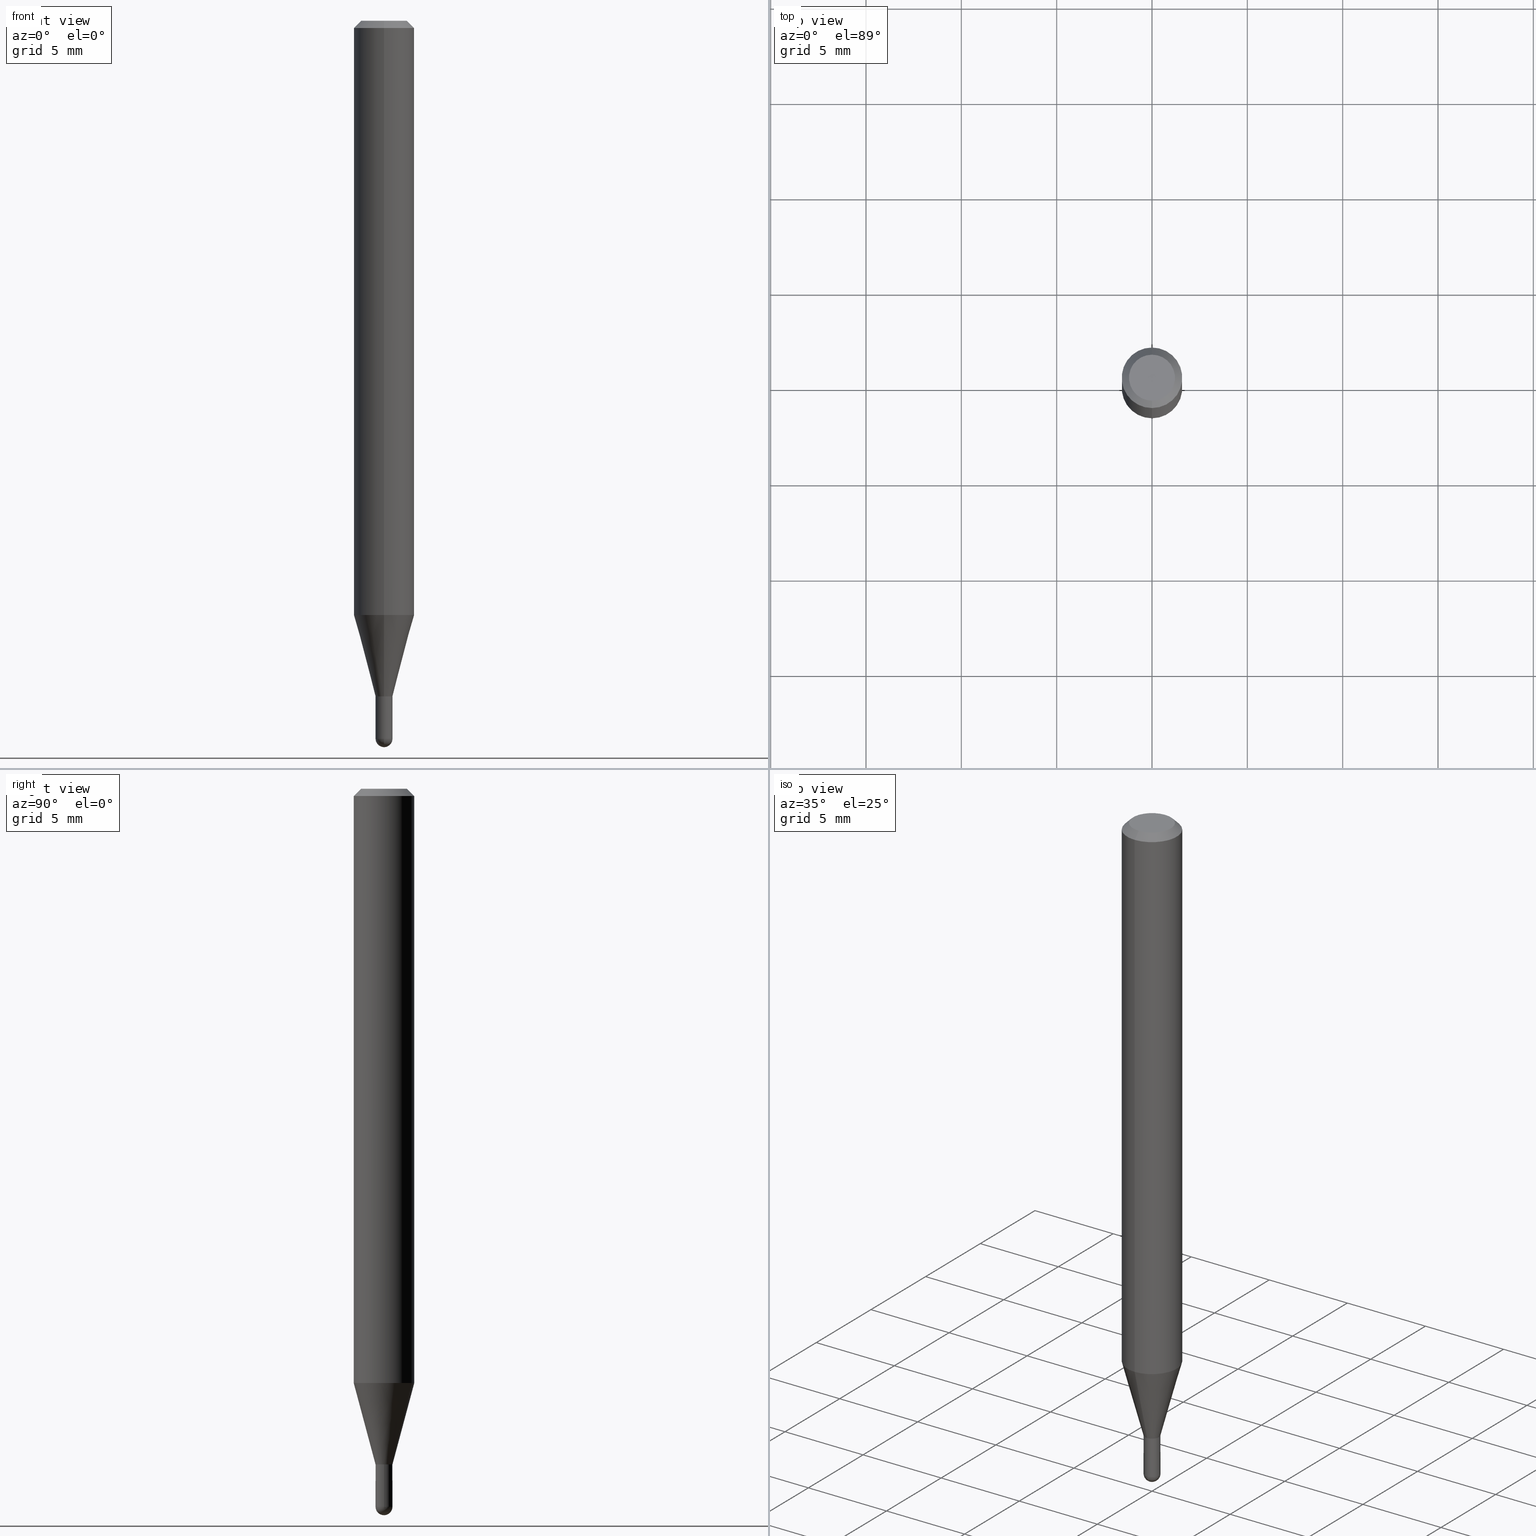
[diagram: canonical four-view strip — front | top / right | iso, engineering-drawing reading convention]
A machine part, canonical four-view strip (front | top / right | iso — engineering-drawing reading convention). The complete STEP part file that produces these views, byte-faithful:
ISO-10303-21;
HEADER;
FILE_DESCRIPTION (( 'STEP AP203' ),
    '1' );
FILE_NAME ('04413.STEP',
    '2024-03-08T19:17:54',
    ( '' ),
    ( '' ),
    'SwSTEP 2.0',
    'SolidWorks 2023',
    '' );
FILE_SCHEMA (( 'CONFIG_CONTROL_DESIGN' ));
ENDSEC;

DATA;
#1 = CARTESIAN_POINT ( 'NONE',  ( -0.01750000000000000167, -4.899023797502559247E-15, -1.395000000000000018 ) ) ;
#2 = VERTEX_POINT ( 'NONE', #423 ) ;
#3 = APPROVAL_PERSON_ORGANIZATION ( #324, #493, #359 ) ;
#4 = APPROVAL_STATUS ( 'not_yet_approved' ) ;
#5 = EDGE_CURVE ( 'NONE', #418, #348, #42, .T. ) ;
#6 = VERTEX_POINT ( 'NONE', #37 ) ;
#7 = COORDINATED_UNIVERSAL_TIME_OFFSET ( 5, 0, .BEHIND. ) ;
#8 = DIRECTION ( 'NONE',  ( 2.438088387897960049E-29, -3.491481338843145188E-15, -1.000000000000000000 ) ) ;
#9 = CARTESIAN_POINT ( 'NONE',  ( 3.840629472727447874E-16, 0.04749999999999999362, -2.313455976474456035E-16 ) ) ;
#10 = EDGE_CURVE ( 'NONE', #112, #468, #506, .T. ) ;
#11 = EDGE_CURVE ( 'NONE', #332, #6, #485, .T. ) ;
#12 = VECTOR ( 'NONE', #499, 39.37007874015748143 ) ;
#13 = LOCAL_TIME ( 14, 17, 54.00000000000000000, #246 ) ;
#14 = COORDINATED_UNIVERSAL_TIME_OFFSET ( 5, 0, .BEHIND. ) ;
#15 = APPLICATION_PROTOCOL_DEFINITION ( 'international standard', 'config_control_design', 1994, #166 ) ;
#16 = CARTESIAN_POINT ( 'NONE',  ( -1.187103655206324139E-16, -0.01700000000000487232, -1.394999999999999796 ) ) ;
#17 = EDGE_CURVE ( 'NONE', #348, #376, #469, .T. ) ;
#18 = DIRECTION ( 'NONE',  ( -6.982962677686265922E-15, -1.000000000000000000, 3.483106191921935554E-15 ) ) ;
#19 = VECTOR ( 'NONE', #367, 39.37007874015748143 ) ;
#20 = AXIS2_PLACEMENT_3D ( 'NONE', #352, #422, #301 ) ;
#21 = LINE ( 'NONE', #370, #97 ) ;
#22 = ORIENTED_EDGE ( 'NONE', *, *, #350, .T. ) ;
#23 = DIRECTION ( 'NONE',  ( -6.982962677686265922E-15, -1.000000000000000000, 3.491476586053657757E-15 ) ) ;
#24 = CC_DESIGN_DATE_AND_TIME_ASSIGNMENT ( #207, #126, ( #89 ) ) ;
#25 = EDGE_LOOP ( 'NONE', ( #509, #222, #336, #303, #353 ) ) ;
#26 = DIRECTION ( 'NONE',  ( -2.445472125040297483E-29, 3.491476586053657757E-15, 1.000000000000000000 ) ) ;
#27 = VERTEX_POINT ( 'NONE', #194 ) ;
#28 = CARTESIAN_POINT ( 'NONE',  ( 4.440892098500625669E-16, 0.06250000000000000000, -2.182172866283536098E-16 ) ) ;
#29 = LOCAL_TIME ( 14, 17, 54.00000000000000000, #202 ) ;
#30 = ORIENTED_EDGE ( 'NONE', *, *, #103, .F. ) ;
#31 = DIRECTION ( 'NONE',  ( -6.982962677686265922E-15, -1.000000000000000000, 0.000000000000000000 ) ) ;
#32 = ORIENTED_EDGE ( 'NONE', *, *, #488, .T. ) ;
#33 = EDGE_CURVE ( 'NONE', #2, #27, #313, .T. ) ;
#34 = FACE_OUTER_BOUND ( 'NONE', #256, .T. ) ;
#35 = CYLINDRICAL_SURFACE ( 'NONE', #397, 0.01750000000000000167 ) ;
#36 = APPLICATION_PROTOCOL_DEFINITION ( 'international standard', 'config_control_design', 1994, #257 ) ;
#37 = CARTESIAN_POINT ( 'NONE',  ( -0.01750000000000000167, -4.899023797502559247E-15, -1.482500000000000373 ) ) ;
#38 = APPROVAL_PERSON_ORGANIZATION ( #361, #333, #366 ) ;
#39 = DIRECTION ( 'NONE',  ( -2.445472125040297483E-29, 3.491476586053657757E-15, 1.000000000000000000 ) ) ;
#40 = VERTEX_POINT ( 'NONE', #465 ) ;
#41 = CARTESIAN_POINT ( 'NONE',  ( 3.411433614431215021E-29, -4.870609837544852369E-15, -1.395000000000000018 ) ) ;
#42 = LINE ( 'NONE', #344, #427 ) ;
#43 = DIRECTION ( 'NONE',  ( -2.445472125040297483E-29, 3.491476586053657757E-15, 1.000000000000000000 ) ) ;
#44 = ORIENTED_EDGE ( 'NONE', *, *, #459, .T. ) ;
#45 = AXIS2_PLACEMENT_3D ( 'NONE', #466, #358, #160 ) ;
#46 = CONICAL_SURFACE ( 'NONE', #486, 0.01700000000000000122, 0.7853981633974739252 ) ;
#47 = DIRECTION ( 'NONE',  ( -1.000000000000000000, 6.982962677686265922E-15, -4.876176775795935793E-29 ) ) ;
#48 = ADVANCED_FACE ( 'NONE', ( #472 ), #35, .T. ) ;
#49 = EDGE_CURVE ( 'NONE', #418, #64, #96, .T. ) ;
#50 = FACE_OUTER_BOUND ( 'NONE', #497, .T. ) ;
#51 = MECHANICAL_CONTEXT ( 'NONE', #257, 'mechanical' ) ;
#52 = FACE_OUTER_BOUND ( 'NONE', #118, .T. ) ;
#53 = VECTOR ( 'NONE', #66, 39.37007874015748143 ) ;
#54 = CIRCLE ( 'NONE', #463, 0.04749999999999999362 ) ;
#55 = PERSON_AND_ORGANIZATION ( #510, #154 ) ;
#56 = CARTESIAN_POINT ( 'NONE',  ( 3.623910964163401181E-29, -5.178264216733472029E-15, -1.482500000000000151 ) ) ;
#57 = PERSON_AND_ORGANIZATION ( #510, #154 ) ;
#58 = DIRECTION ( 'NONE',  ( -2.445472125040297483E-29, 3.491476586053657757E-15, 1.000000000000000000 ) ) ;
#59 = FACE_OUTER_BOUND ( 'NONE', #217, .T. ) ;
#60 = ORIENTED_EDGE ( 'NONE', *, *, #124, .T. ) ;
#61 = VECTOR ( 'NONE', #435, 39.37007874015748143 ) ;
#62 = AXIS2_PLACEMENT_3D ( 'NONE', #199, #39, #429 ) ;
#63 = DIRECTION ( 'NONE',  ( -2.445472125040297483E-29, 3.491476586053657757E-15, 1.000000000000000000 ) ) ;
#64 = VERTEX_POINT ( 'NONE', #326 ) ;
#65 = FACE_OUTER_BOUND ( 'NONE', #274, .T. ) ;
#66 = DIRECTION ( 'NONE',  ( -4.851104656540964275E-15, -0.7071067811865500152, -0.7071067811865450192 ) ) ;
#67 = ORIENTED_EDGE ( 'NONE', *, *, #448, .T. ) ;
#68 = DIRECTION ( 'NONE',  ( -6.982962677686265922E-15, -1.000000000000000000, 3.491476586053657757E-15 ) ) ;
#69 = AXIS2_PLACEMENT_3D ( 'NONE', #277, #283, #281 ) ;
#70 = EDGE_LOOP ( 'NONE', ( #293, #141, #200, #396 ) ) ;
#71 = ADVANCED_FACE ( 'NONE', ( #135 ), #169, .T. ) ;
#72 = DIRECTION ( 'NONE',  ( -6.982962677686265133E-15, -1.000000000000000000, 0.000000000000000000 ) ) ;
#73 = ORIENTED_EDGE ( 'NONE', *, *, #305, .T. ) ;
#74 = CARTESIAN_POINT ( 'NONE',  ( 0.000000000000000000, 0.000000000000000000, 0.000000000000000000 ) ) ;
#75 = CC_DESIGN_DATE_AND_TIME_ASSIGNMENT ( #363, #250, ( #407 ) ) ;
#76 = CIRCLE ( 'NONE', #212, 0.06250000000000000000 ) ;
#77 = ORIENTED_EDGE ( 'NONE', *, *, #425, .T. ) ;
#78 = ADVANCED_FACE ( 'NONE', ( #479 ), #487, .F. ) ;
#79 = DIRECTION ( 'NONE',  ( -6.982962677686265133E-15, -1.000000000000000000, 0.000000000000000000 ) ) ;
#80 = ORIENTED_EDGE ( 'NONE', *, *, #81, .F. ) ;
#81 = EDGE_CURVE ( 'NONE', #40, #388, #76, .T. ) ;
#82 = DIRECTION ( 'NONE',  ( 2.445472125040297203E-29, -3.491476586053657757E-15, -1.000000000000000000 ) ) ;
#83 = CARTESIAN_POINT ( 'NONE',  ( 0.000000000000000000, 0.000000000000000000, 0.000000000000000000 ) ) ;
#84 = PERSON_AND_ORGANIZATION_ROLE ( 'design_supplier' ) ;
#85 = DIRECTION ( 'NONE',  ( -6.982962677686265922E-15, -1.000000000000000000, 0.000000000000000000 ) ) ;
#86 = AXIS2_PLACEMENT_3D ( 'NONE', #56, #165, #401 ) ;
#87 = AXIS2_PLACEMENT_3D ( 'NONE', #99, #252, #140 ) ;
#88 = AXIS2_PLACEMENT_3D ( 'NONE', #253, #63, #23 ) ;
#89 = PRODUCT_DEFINITION ( 'UNKNOWN', '', #453, #413 ) ;
#90 = APPROVAL_DATE_TIME ( #402, #480 ) ;
#91 = CARTESIAN_POINT ( 'NONE',  ( 0.000000000000000000, 0.000000000000000000, 0.000000000000000000 ) ) ;
#92 = SHAPE_DEFINITION_REPRESENTATION ( #162, #271 ) ;
#93 = DIRECTION ( 'NONE',  ( -2.445468806185136597E-29, 3.491481338843145583E-15, 1.000000000000000000 ) ) ;
#94 = SECURITY_CLASSIFICATION_LEVEL ( 'unclassified' ) ;
#95 = CARTESIAN_POINT ( 'NONE',  ( 3.668208187560462655E-31, -5.237214879080509612E-17, -0.01500000000000006710 ) ) ;
#96 = CIRCLE ( 'NONE', #286, 0.01749999999999965472 ) ;
#97 = VECTOR ( 'NONE', #330, 39.37007874015748143 ) ;
#98 = CARTESIAN_POINT ( 'NONE',  ( 3.668208187560462655E-31, -5.237214879080509612E-17, -0.01500000000000006710 ) ) ;
#99 = CARTESIAN_POINT ( 'NONE',  ( 3.411433614431215021E-29, -4.870609837544852369E-15, -1.395000000000000018 ) ) ;
#100 = CYLINDRICAL_SURFACE ( 'NONE', #88, 0.06250000000000000000 ) ;
#101 = ORIENTED_EDGE ( 'NONE', *, *, #17, .T. ) ;
#102 = VECTOR ( 'NONE', #335, 39.37007874015748143 ) ;
#103 = EDGE_CURVE ( 'NONE', #268, #332, #278, .T. ) ;
#104 = CIRCLE ( 'NONE', #470, 0.01750000000000000167 ) ;
#105 = SPHERICAL_SURFACE ( 'NONE', #178, 0.01750000000000000860 ) ;
#106 = ORIENTED_EDGE ( 'NONE', *, *, #351, .F. ) ;
#107 = FACE_OUTER_BOUND ( 'NONE', #340, .T. ) ;
#108 = ORIENTED_EDGE ( 'NONE', *, *, #310, .T. ) ;
#109 = DIRECTION ( 'NONE',  ( -1.000000000000000000, 6.982962677686265922E-15, -4.883557194083112340E-29 ) ) ;
#110 =( NAMED_UNIT ( * ) SI_UNIT ( $, .STERADIAN. ) SOLID_ANGLE_UNIT ( ) );
#111 = CIRCLE ( 'NONE', #287, 0.01750000000000000167 ) ;
#112 = VERTEX_POINT ( 'NONE', #242 ) ;
#113 = EDGE_CURVE ( 'NONE', #416, #454, #452, .T. ) ;
#114 = ORIENTED_EDGE ( 'NONE', *, *, #310, .F. ) ;
#115 = EDGE_CURVE ( 'NONE', #232, #112, #177, .T. ) ;
#116 = CARTESIAN_POINT ( 'NONE',  ( 3.411433614431214460E-29, -4.870609837544851580E-15, -1.394999999999999796 ) ) ;
#117 = LINE ( 'NONE', #197, #329 ) ;
#118 = EDGE_LOOP ( 'NONE', ( #106, #73, #342, #259 ) ) ;
#119 = AXIS2_PLACEMENT_3D ( 'NONE', #383, #210, #143 ) ;
#120 = ORIENTED_EDGE ( 'NONE', *, *, #49, .T. ) ;
#121 = MANIFOLD_SOLID_BREP ( 'Body-Move/Copy2[2]', #206 ) ;
#122 = DATE_AND_TIME ( #282, #338 ) ;
#123 = ORIENTED_EDGE ( 'NONE', *, *, #185, .T. ) ;
#124 = EDGE_CURVE ( 'NONE', #27, #348, #209, .T. ) ;
#125 = MANIFOLD_SOLID_BREP ( 'Body-Move/Copy2[1]', #496 ) ;
#126 = DATE_TIME_ROLE ( 'creation_date' ) ;
#127 = LINE ( 'NONE', #285, #19 ) ;
#128 = VECTOR ( 'NONE', #438, 39.37007874015748143 ) ;
#129 = CC_DESIGN_APPROVAL ( #480, ( #89 ) ) ;
#130 = CALENDAR_DATE ( 2024, 8, 3 ) ;
#131 = DIRECTION ( 'NONE',  ( -6.982962677686265922E-15, -1.000000000000000000, 0.000000000000000000 ) ) ;
#132 = PERSON_AND_ORGANIZATION_ROLE ( 'classification_officer' ) ;
#133 = CARTESIAN_POINT ( 'NONE',  ( 3.000735434569753692E-29, -4.284243276978344601E-15, -1.227057713659404747 ) ) ;
#134 = APPROVAL_DATE_TIME ( #241, #493 ) ;
#135 = FACE_OUTER_BOUND ( 'NONE', #300, .T. ) ;
#136 = EDGE_CURVE ( 'NONE', #6, #232, #477, .T. ) ;
#137 = CIRCLE ( 'NONE', #229, 0.01700000000000000122 ) ;
#138 = CYLINDRICAL_SURFACE ( 'NONE', #263, 0.06250000000000000000 ) ;
#139 = UNCERTAINTY_MEASURE_WITH_UNIT (LENGTH_MEASURE( 1.000000000000000082E-05 ), #464, 'distance_accuracy_value', 'NONE');
#140 = DIRECTION ( 'NONE',  ( -6.982962677686265133E-15, -1.000000000000000000, 0.000000000000000000 ) ) ;
#141 = ORIENTED_EDGE ( 'NONE', *, *, #488, .F. ) ;
#142 = ADVANCED_FACE ( 'NONE', ( #50 ), #409, .T. ) ;
#143 = DIRECTION ( 'NONE',  ( -6.982962677686265133E-15, -1.000000000000000000, 0.000000000000000000 ) ) ;
#144 = ORIENTED_EDGE ( 'NONE', *, *, #433, .F. ) ;
#145 = AXIS2_PLACEMENT_3D ( 'NONE', #457, #183, #374 ) ;
#146 = CARTESIAN_POINT ( 'NONE',  ( 1.243449787580538073E-16, 0.01749999999999482872, -1.482500000000000373 ) ) ;
#147 = EDGE_LOOP ( 'NONE', ( #219, #420, #312, #190 ) ) ;
#148 = CARTESIAN_POINT ( 'NONE',  ( -4.287811248607203282E-16, -0.06250000000000005551, -0.01499999999999984852 ) ) ;
#149 = ORIENTED_EDGE ( 'NONE', *, *, #172, .F. ) ;
#150 = DIRECTION ( 'NONE',  ( 1.000000000000000000, -6.982962677686248567E-15, 0.000000000000000000 ) ) ;
#151 = ORIENTED_EDGE ( 'NONE', *, *, #185, .F. ) ;
#152 = EDGE_CURVE ( 'NONE', #40, #416, #127, .T. ) ;
#153 = CARTESIAN_POINT ( 'NONE',  ( 1.601795486424251367E-45, -2.286933218020036145E-31, -6.550045980989689253E-17 ) ) ;
#154 = ORGANIZATION ( 'UNSPECIFIED', 'UNSPECIFIED', '' ) ;
#155 = DIRECTION ( 'NONE',  ( 1.000000000000000000, -6.982962677686265922E-15, 4.876176775795936353E-29 ) ) ;
#156 = ORIENTED_EDGE ( 'NONE', *, *, #473, .T. ) ;
#157 = ADVANCED_FACE ( 'NONE', ( #245 ), #237, .T. ) ;
#158 = PRODUCT ( '04413', '04413', '', ( #51 ) ) ;
#159 = CARTESIAN_POINT ( 'NONE',  ( -1.222018468594731037E-16, -0.01750000000000452235, -1.395000000000000018 ) ) ;
#160 = DIRECTION ( 'NONE',  ( 1.000000000000000000, -6.982962677686248567E-15, 0.000000000000000000 ) ) ;
#161 = ORIENTED_EDGE ( 'NONE', *, *, #473, .F. ) ;
#162 = PRODUCT_DEFINITION_SHAPE ( 'NONE', 'NONE',  #89 ) ;
#163 = APPROVAL_STATUS ( 'not_yet_approved' ) ;
#164 = ORIENTED_EDGE ( 'NONE', *, *, #136, .F. ) ;
#165 = DIRECTION ( 'NONE',  ( 1.000000000000000000, -7.105427357601001070E-15, 4.926315508542082329E-29 ) ) ;
#166 = APPLICATION_CONTEXT ( 'configuration controlled 3d designs of mechanical parts and assemblies' ) ;
#167 = DIRECTION ( 'NONE',  ( 0.000000000000000000, 0.000000000000000000, 1.000000000000000000 ) ) ;
#168 = FACE_OUTER_BOUND ( 'NONE', #25, .T. ) ;
#169 = CONICAL_SURFACE ( 'NONE', #220, 0.01700000000000000122, 0.7853981633974739252 ) ;
#170 = CC_DESIGN_PERSON_AND_ORGANIZATION_ASSIGNMENT ( #319, #132, ( #407 ) ) ;
#171 = PERSON_AND_ORGANIZATION ( #510, #154 ) ;
#172 = EDGE_CURVE ( 'NONE', #454, #416, #345, .T. ) ;
#173 = CARTESIAN_POINT ( 'NONE',  ( 3.623910964163401181E-29, -5.178264216733472029E-15, -1.482500000000000151 ) ) ;
#174 = PERSON_AND_ORGANIZATION ( #510, #154 ) ;
#175 = CARTESIAN_POINT ( 'NONE',  ( 1.222018468595437807E-16, 0.01749999999999513056, -1.395000000000000018 ) ) ;
#176 = CARTESIAN_POINT ( 'NONE',  ( 3.411433614431214460E-29, -4.870609837544851580E-15, -1.394999999999999796 ) ) ;
#177 = CIRCLE ( 'NONE', #238, 0.01750000000000000167 ) ;
#178 = AXIS2_PLACEMENT_3D ( 'NONE', #255, #385, #390 ) ;
#179 = DIRECTION ( 'NONE',  ( 1.839019923739650408E-15, 0.2588190451025319527, 0.9659258262890650926 ) ) ;
#180 = ORIENTED_EDGE ( 'NONE', *, *, #386, .T. ) ;
#181 = FACE_OUTER_BOUND ( 'NONE', #269, .T. ) ;
#182 = ORIENTED_EDGE ( 'NONE', *, *, #10, .F. ) ;
#183 = DIRECTION ( 'NONE',  ( -2.445468806185136597E-29, 3.491481338843145583E-15, 1.000000000000000000 ) ) ;
#184 = ORIENTED_EDGE ( 'NONE', *, *, #351, .T. ) ;
#185 = EDGE_CURVE ( 'NONE', #418, #40, #360, .T. ) ;
#186 = AXIS2_PLACEMENT_3D ( 'NONE', #495, #109, #261 ) ;
#187 = DIRECTION ( 'NONE',  ( -2.445472125040297203E-29, 3.491476586053657757E-15, 1.000000000000000000 ) ) ;
#188 = ORIENTED_EDGE ( 'NONE', *, *, #11, .F. ) ;
#189 = DIRECTION ( 'NONE',  ( 6.982962677686265922E-15, 1.000000000000000000, -3.483106191921935554E-15 ) ) ;
#190 = ORIENTED_EDGE ( 'NONE', *, *, #152, .F. ) ;
#191 = DIRECTION ( 'NONE',  ( -2.445468806185136597E-29, 3.491481338843145583E-15, 1.000000000000000000 ) ) ;
#192 =( LENGTH_UNIT ( ) NAMED_UNIT ( * ) SI_UNIT ( $, .METRE. ) );
#193 = LOCAL_TIME ( 14, 17, 54.00000000000000000, #14 ) ;
#194 = CARTESIAN_POINT ( 'NONE',  ( -1.187103655206324139E-16, -0.01700000000000487232, -1.394999999999999796 ) ) ;
#195 = PLANE ( 'NONE',  #428 ) ;
#196 = ORIENTED_EDGE ( 'NONE', *, *, #273, .T. ) ;
#197 = CARTESIAN_POINT ( 'NONE',  ( 1.243449787580150545E-16, 0.01749999999999965472, -6.110084025593780380E-17 ) ) ;
#198 = EDGE_LOOP ( 'NONE', ( #373, #315, #355, #456 ) ) ;
#199 = CARTESIAN_POINT ( 'NONE',  ( 3.000735434569753692E-29, -4.284243276978344601E-15, -1.227057713659404747 ) ) ;
#200 = ORIENTED_EDGE ( 'NONE', *, *, #375, .T. ) ;
#201 = DIRECTION ( 'NONE',  ( 1.000000000000000000, -6.982962677686265922E-15, 4.883557194083112340E-29 ) ) ;
#202 = COORDINATED_UNIVERSAL_TIME_OFFSET ( 5, 0, .BEHIND. ) ;
#203 = DIRECTION ( 'NONE',  ( -6.982962677686265133E-15, -1.000000000000000000, 3.491476586053657757E-15 ) ) ;
#204 = APPROVAL_ROLE ( '' ) ;
#205 = CARTESIAN_POINT ( 'NONE',  ( 3.668208187560462655E-31, -5.237214879080509612E-17, -0.01500000000000006710 ) ) ;
#206 = CLOSED_SHELL ( 'NONE', ( #224, #405, #260, #391, #494, #368, #334, #157, #439, #289, #71, #498 ) ) ;
#207 = DATE_AND_TIME ( #130, #193 ) ;
#208 = DIRECTION ( 'NONE',  ( 1.000000000000000000, -6.982962677686248567E-15, 0.000000000000000000 ) ) ;
#209 = LINE ( 'NONE', #16, #61 ) ;
#210 = DIRECTION ( 'NONE',  ( -2.445472125040297483E-29, 3.491476586053657757E-15, 1.000000000000000000 ) ) ;
#211 = ORIENTED_EDGE ( 'NONE', *, *, #33, .T. ) ;
#212 = AXIS2_PLACEMENT_3D ( 'NONE', #133, #325, #323 ) ;
#213 =( GEOMETRIC_REPRESENTATION_CONTEXT ( 3 ) GLOBAL_UNCERTAINTY_ASSIGNED_CONTEXT ( ( #139 ) ) GLOBAL_UNIT_ASSIGNED_CONTEXT ( ( #464, #395, #110 ) ) REPRESENTATION_CONTEXT ( 'NONE', 'WORKASPACE' ) );
#214 = LINE ( 'NONE', #28, #102 ) ;
#215 = ORIENTED_EDGE ( 'NONE', *, *, #425, .F. ) ;
#216 = CARTESIAN_POINT ( 'NONE',  ( 1.243449787580487290E-16, 0.01749999999999472464, -1.394500000000000073 ) ) ;
#217 = EDGE_LOOP ( 'NONE', ( #450, #307 ) ) ;
#218 = CARTESIAN_POINT ( 'NONE',  ( 3.411433614431214460E-29, -4.870609837544851580E-15, -1.394999999999999796 ) ) ;
#219 = ORIENTED_EDGE ( 'NONE', *, *, #81, .T. ) ;
#220 = AXIS2_PLACEMENT_3D ( 'NONE', #176, #482, #131 ) ;
#221 = DIRECTION ( 'NONE',  ( -2.445472125040297483E-29, 3.491476586053657757E-15, 1.000000000000000000 ) ) ;
#222 = ORIENTED_EDGE ( 'NONE', *, *, #136, .T. ) ;
#223 = DIRECTION ( 'NONE',  ( -2.445472125040297483E-29, 3.491476586053657757E-15, 1.000000000000000000 ) ) ;
#224 = ADVANCED_FACE ( 'NONE', ( #400 ), #476, .F. ) ;
#225 = CARTESIAN_POINT ( 'NONE',  ( 4.440892098500928887E-16, 0.06249999999999995837, -0.01500000000000028394 ) ) ;
#226 = VERTEX_POINT ( 'NONE', #9 ) ;
#227 = AXIS2_PLACEMENT_3D ( 'NONE', #451, #187, #341 ) ;
#228 = CARTESIAN_POINT ( 'NONE',  ( 3.625407505169465812E-29, -5.176121084834964763E-15, -1.482500000000000373 ) ) ;
#229 = AXIS2_PLACEMENT_3D ( 'NONE', #218, #26, #31 ) ;
#230 = DIRECTION ( 'NONE',  ( -2.445472125040297483E-29, 3.491476586053657757E-15, 1.000000000000000000 ) ) ;
#231 = DIRECTION ( 'NONE',  ( 6.982962677686265922E-15, 1.000000000000000000, -3.491476586053657757E-15 ) ) ;
#232 = VERTEX_POINT ( 'NONE', #408 ) ;
#233 = DIRECTION ( 'NONE',  ( -6.982962677686265133E-15, -1.000000000000000000, 3.491476586053657757E-15 ) ) ;
#234 = EDGE_LOOP ( 'NONE', ( #32, #184 ) ) ;
#235 = ADVANCED_FACE ( 'NONE', ( #168 ), #322, .T. ) ;
#236 = APPROVAL_DATE_TIME ( #122, #333 ) ;
#237 = CONICAL_SURFACE ( 'NONE', #304, 0.06250000000000000000, 0.7853981633974483900 ) ;
#238 = AXIS2_PLACEMENT_3D ( 'NONE', #446, #280, #208 ) ;
#239 = CARTESIAN_POINT ( 'NONE',  ( -1.222018468594731037E-16, -0.01750000000000452235, -1.395000000000000018 ) ) ;
#240 = CIRCLE ( 'NONE', #357, 0.01749999999999965472 ) ;
#241 = DATE_AND_TIME ( #284, #29 ) ;
#242 = CARTESIAN_POINT ( 'NONE',  ( 0.01750000000000000167, -5.145570623120085689E-15, -1.482500000000000373 ) ) ;
#243 = CALENDAR_DATE ( 2024, 8, 3 ) ;
#244 = CC_DESIGN_PERSON_AND_ORGANIZATION_ASSIGNMENT ( #174, #475, ( #453 ) ) ;
#245 = FACE_OUTER_BOUND ( 'NONE', #70, .T. ) ;
#246 = COORDINATED_UNIVERSAL_TIME_OFFSET ( 5, 0, .BEHIND. ) ;
#247 = DIRECTION ( 'NONE',  ( -2.445472125040297483E-29, 3.491476586053657757E-15, 1.000000000000000000 ) ) ;
#248 = AXIS2_PLACEMENT_3D ( 'NONE', #175, #8, #47 ) ;
#249 = CIRCLE ( 'NONE', #119, 0.01749999999999965472 ) ;
#250 = DATE_TIME_ROLE ( 'classification_date' ) ;
#251 = DIRECTION ( 'NONE',  ( 1.000000000000000000, -6.982962677686248567E-15, 0.000000000000000000 ) ) ;
#252 = DIRECTION ( 'NONE',  ( -2.445472125040297483E-29, 3.491476586053657757E-15, 1.000000000000000000 ) ) ;
#253 = CARTESIAN_POINT ( 'NONE',  ( 0.000000000000000000, 0.000000000000000000, 0.000000000000000000 ) ) ;
#254 = ORIENTED_EDGE ( 'NONE', *, *, #5, .F. ) ;
#255 = CARTESIAN_POINT ( 'NONE',  ( 3.623910964163401181E-29, -5.178264216733472029E-15, -1.482500000000000151 ) ) ;
#256 = EDGE_LOOP ( 'NONE', ( #120, #196, #80, #151 ) ) ;
#257 = APPLICATION_CONTEXT ( 'configuration controlled 3d designs of mechanical parts and assemblies' ) ;
#258 = FACE_OUTER_BOUND ( 'NONE', #147, .T. ) ;
#259 = ORIENTED_EDGE ( 'NONE', *, *, #375, .F. ) ;
#260 = ADVANCED_FACE ( 'NONE', ( #52 ), #444, .T. ) ;
#261 = DIRECTION ( 'NONE',  ( -6.982962677686265922E-15, -1.000000000000000000, 0.000000000000000000 ) ) ;
#262 = ORIENTED_EDGE ( 'NONE', *, *, #49, .F. ) ;
#263 = AXIS2_PLACEMENT_3D ( 'NONE', #419, #221, #68 ) ;
#264 = DIRECTION ( 'NONE',  ( -2.445468806185136597E-29, 3.491481338843145583E-15, 1.000000000000000000 ) ) ;
#265 = ORIENTED_EDGE ( 'NONE', *, *, #103, .T. ) ;
#266 = CC_DESIGN_PERSON_AND_ORGANIZATION_ASSIGNMENT ( #57, #437, ( #158 ) ) ;
#267 = DIRECTION ( 'NONE',  ( -2.445472125040297483E-29, 3.491476586053657757E-15, 1.000000000000000000 ) ) ;
#268 = VERTEX_POINT ( 'NONE', #411 ) ;
#269 = EDGE_LOOP ( 'NONE', ( #30, #461, #164, #188 ) ) ;
#270 = AXIS2_PLACEMENT_3D ( 'NONE', #205, #365, #189 ) ;
#271 = ADVANCED_BREP_SHAPE_REPRESENTATION ( '04413', ( #125, #121, #436 ), #213 ) ;
#272 = DIRECTION ( 'NONE',  ( -2.445472125040297483E-29, 3.491476586053657757E-15, 1.000000000000000000 ) ) ;
#273 = EDGE_CURVE ( 'NONE', #64, #388, #417, .T. ) ;
#274 = EDGE_LOOP ( 'NONE', ( #316, #275, #500, #149 ) ) ;
#275 = ORIENTED_EDGE ( 'NONE', *, *, #433, .T. ) ;
#276 = EDGE_CURVE ( 'NONE', #388, #454, #214, .T. ) ;
#277 = CARTESIAN_POINT ( 'NONE',  ( 3.668208187560462655E-31, -5.237214879080509612E-17, -0.01500000000000006710 ) ) ;
#278 = CIRCLE ( 'NONE', #86, 0.01750000000000000860 ) ;
#279 = APPROVAL_PERSON_ORGANIZATION ( #55, #480, #204 ) ;
#280 = DIRECTION ( 'NONE',  ( -2.445468806185136597E-29, 3.491481338843145583E-15, 1.000000000000000000 ) ) ;
#281 = DIRECTION ( 'NONE',  ( -6.982962677686265922E-15, -1.000000000000000000, 3.483106191921935554E-15 ) ) ;
#282 = CALENDAR_DATE ( 2024, 8, 3 ) ;
#283 = DIRECTION ( 'NONE',  ( -2.445472125040297483E-29, 3.491476586053657757E-15, 1.000000000000000000 ) ) ;
#284 = CALENDAR_DATE ( 2024, 8, 3 ) ;
#285 = CARTESIAN_POINT ( 'NONE',  ( -4.364351673553916201E-16, -0.06250000000000000000, 2.182172866283536098E-16 ) ) ;
#286 = AXIS2_PLACEMENT_3D ( 'NONE', #426, #230, #484 ) ;
#287 = AXIS2_PLACEMENT_3D ( 'NONE', #228, #264, #150 ) ;
#288 = DIRECTION ( 'NONE',  ( -6.982962677686266711E-15, -1.000000000000000000, 3.491476586053657363E-15 ) ) ;
#289 = ADVANCED_FACE ( 'NONE', ( #59 ), #290, .F. ) ;
#290 = PLANE ( 'NONE',  #227 ) ;
#291 = ORIENTED_EDGE ( 'NONE', *, *, #11, .T. ) ;
#292 = FACE_OUTER_BOUND ( 'NONE', #198, .T. ) ;
#293 = ORIENTED_EDGE ( 'NONE', *, *, #305, .F. ) ;
#294 = AXIS2_PLACEMENT_3D ( 'NONE', #116, #223, #387 ) ;
#295 = CC_DESIGN_APPROVAL ( #493, ( #407 ) ) ;
#296 = DIMENSIONAL_EXPONENTS ( 1.000000000000000000, 0.000000000000000000, 0.000000000000000000, 0.000000000000000000, 0.000000000000000000, 0.000000000000000000, 0.000000000000000000 ) ;
#297 = CARTESIAN_POINT ( 'NONE',  ( -1.222018468594735228E-16, -0.01750000000000458134, -1.394500000000000073 ) ) ;
#298 = VERTEX_POINT ( 'NONE', #339 ) ;
#299 = LINE ( 'NONE', #148, #53 ) ;
#300 = EDGE_LOOP ( 'NONE', ( #384, #211, #60, #424 ) ) ;
#301 = DIRECTION ( 'NONE',  ( -6.982962677686265133E-15, -1.000000000000000000, 0.000000000000000000 ) ) ;
#302 = EDGE_CURVE ( 'NONE', #2, #376, #491, .T. ) ;
#303 = ORIENTED_EDGE ( 'NONE', *, *, #10, .T. ) ;
#304 = AXIS2_PLACEMENT_3D ( 'NONE', #98, #317, #442 ) ;
#305 = EDGE_CURVE ( 'NONE', #298, #416, #299, .T. ) ;
#306 = DIRECTION ( 'NONE',  ( -2.445472125040297483E-29, 3.491476586053657757E-15, 1.000000000000000000 ) ) ;
#307 = ORIENTED_EDGE ( 'NONE', *, *, #33, .F. ) ;
#308 = DIRECTION ( 'NONE',  ( -6.982962677686266711E-15, -1.000000000000000000, 3.491476586053657363E-15 ) ) ;
#309 = ORIENTED_EDGE ( 'NONE', *, *, #459, .F. ) ;
#310 = EDGE_CURVE ( 'NONE', #468, #492, #337, .T. ) ;
#311 = FACE_OUTER_BOUND ( 'NONE', #234, .T. ) ;
#312 = ORIENTED_EDGE ( 'NONE', *, *, #113, .F. ) ;
#313 = CIRCLE ( 'NONE', #294, 0.01700000000000000122 ) ;
#314 = DIRECTION ( 'NONE',  ( -6.982962677686265922E-15, -1.000000000000000000, 0.000000000000000000 ) ) ;
#315 = ORIENTED_EDGE ( 'NONE', *, *, #302, .T. ) ;
#316 = ORIENTED_EDGE ( 'NONE', *, *, #276, .F. ) ;
#317 = DIRECTION ( 'NONE',  ( 2.445472125040297483E-29, -3.491476586053657757E-15, -1.000000000000000000 ) ) ;
#318 = EDGE_CURVE ( 'NONE', #27, #2, #137, .T. ) ;
#319 = PERSON_AND_ORGANIZATION ( #510, #154 ) ;
#320 = VECTOR ( 'NONE', #179, 39.37007874015748854 ) ;
#321 = CC_DESIGN_APPROVAL ( #333, ( #453 ) ) ;
#322 = CYLINDRICAL_SURFACE ( 'NONE', #371, 0.01750000000000000167 ) ;
#323 = DIRECTION ( 'NONE',  ( -6.982962677686265922E-15, -1.000000000000000000, 4.370956789862821150E-15 ) ) ;
#324 = PERSON_AND_ORGANIZATION ( #510, #154 ) ;
#325 = DIRECTION ( 'NONE',  ( -2.445472125040297483E-29, 3.491476586053657757E-15, 1.000000000000000000 ) ) ;
#326 = CARTESIAN_POINT ( 'NONE',  ( 2.842170943040709938E-16, 0.01749999999999478362, -1.395000000000000018 ) ) ;
#327 = EDGE_CURVE ( 'NONE', #268, #232, #346, .T. ) ;
#328 = AXIS2_PLACEMENT_3D ( 'NONE', #474, #394, #72 ) ;
#329 = VECTOR ( 'NONE', #267, 39.37007874015748143 ) ;
#330 = DIRECTION ( 'NONE',  ( 4.937700262164548042E-15, 0.7071067811865451302, -0.7071067811865499042 ) ) ;
#331 = EDGE_LOOP ( 'NONE', ( #108, #180 ) ) ;
#332 = VERTEX_POINT ( 'NONE', #146 ) ;
#333 = APPROVAL ( #434, 'UNSPECIFIED' ) ;
#334 = ADVANCED_FACE ( 'NONE', ( #65 ), #138, .T. ) ;
#335 = DIRECTION ( 'NONE',  ( -2.445472125040297483E-29, 3.491476586053657757E-15, 1.000000000000000000 ) ) ;
#336 = ORIENTED_EDGE ( 'NONE', *, *, #115, .T. ) ;
#337 = CIRCLE ( 'NONE', #145, 0.01750000000000000167 ) ;
#338 = LOCAL_TIME ( 14, 17, 54.00000000000000000, #481 ) ;
#339 = CARTESIAN_POINT ( 'NONE',  ( -3.773273898774340269E-16, -0.04749999999999999362, 1.003446780276518307E-16 ) ) ;
#340 = EDGE_LOOP ( 'NONE', ( #380, #77, #123, #144 ) ) ;
#341 = DIRECTION ( 'NONE',  ( -6.982962677686265922E-15, -1.000000000000000000, 3.491476586053657757E-15 ) ) ;
#342 = ORIENTED_EDGE ( 'NONE', *, *, #113, .T. ) ;
#343 = CARTESIAN_POINT ( 'NONE',  ( 3.316907271900976096E-16, 0.04749999999999999362, -1.985953677424971572E-16 ) ) ;
#344 = CARTESIAN_POINT ( 'NONE',  ( -1.222018468595072220E-16, -0.01749999999999965472, 6.110084025593780380E-17 ) ) ;
#345 = CIRCLE ( 'NONE', #381, 0.06250000000000000000 ) ;
#346 = CIRCLE ( 'NONE', #186, 0.01750000000000000860 ) ;
#347 = FACE_OUTER_BOUND ( 'NONE', #458, .T. ) ;
#348 = VERTEX_POINT ( 'NONE', #297 ) ;
#349 = CC_DESIGN_PERSON_AND_ORGANIZATION_ASSIGNMENT ( #171, #84, ( #453 ) ) ;
#350 = EDGE_CURVE ( 'NONE', #376, #348, #249, .T. ) ;
#351 = EDGE_CURVE ( 'NONE', #298, #226, #54, .T. ) ;
#352 = CARTESIAN_POINT ( 'NONE',  ( 3.411433614431215021E-29, -4.870609837544852369E-15, -1.395000000000000018 ) ) ;
#353 = ORIENTED_EDGE ( 'NONE', *, *, #386, .F. ) ;
#354 = CARTESIAN_POINT ( 'NONE',  ( 0.01750000000000000167, -4.992818314545698211E-15, -1.395000000000000018 ) ) ;
#355 = ORIENTED_EDGE ( 'NONE', *, *, #17, .F. ) ;
#356 = VECTOR ( 'NONE', #512, 39.37007874015748143 ) ;
#357 = AXIS2_PLACEMENT_3D ( 'NONE', #41, #43, #79 ) ;
#358 = DIRECTION ( 'NONE',  ( -2.445468806185136597E-29, 3.491481338843145583E-15, 1.000000000000000000 ) ) ;
#359 = APPROVAL_ROLE ( '' ) ;
#360 = LINE ( 'NONE', #239, #128 ) ;
#361 = PERSON_AND_ORGANIZATION ( #510, #154 ) ;
#362 = DIRECTION ( 'NONE',  ( -2.445468806185136597E-29, 3.491481338843145583E-15, 1.000000000000000000 ) ) ;
#363 = DATE_AND_TIME ( #243, #13 ) ;
#364 = CIRCLE ( 'NONE', #389, 0.04749999999999999362 ) ;
#365 = DIRECTION ( 'NONE',  ( 2.445472125040297483E-29, -3.491476586053657757E-15, -1.000000000000000000 ) ) ;
#366 = APPROVAL_ROLE ( '' ) ;
#367 = DIRECTION ( 'NONE',  ( -2.445472125040297483E-29, 3.491476586053657757E-15, 1.000000000000000000 ) ) ;
#368 = ADVANCED_FACE ( 'NONE', ( #107 ), #421, .T. ) ;
#369 = CARTESIAN_POINT ( 'NONE',  ( 3.625407505169465812E-29, -5.176121084834964763E-15, -1.482500000000000373 ) ) ;
#370 = CARTESIAN_POINT ( 'NONE',  ( 4.364351673553919652E-16, 0.06249999999999995143, -0.01500000000000028394 ) ) ;
#371 = AXIS2_PLACEMENT_3D ( 'NONE', #440, #93, #403 ) ;
#372 = AXIS2_PLACEMENT_3D ( 'NONE', #501, #508, #233 ) ;
#373 = ORIENTED_EDGE ( 'NONE', *, *, #318, .T. ) ;
#374 = DIRECTION ( 'NONE',  ( 1.000000000000000000, -6.982962677686248567E-15, 0.000000000000000000 ) ) ;
#375 = EDGE_CURVE ( 'NONE', #226, #454, #21, .T. ) ;
#376 = VERTEX_POINT ( 'NONE', #216 ) ;
#377 = DIRECTION ( 'NONE',  ( -2.445468806185136597E-29, 3.491481338843145583E-15, 1.000000000000000000 ) ) ;
#378 = EDGE_LOOP ( 'NONE', ( #215, #44, #22, #254 ) ) ;
#379 = CARTESIAN_POINT ( 'NONE',  ( 3.411428984628265351E-29, -4.870616467686188228E-15, -1.395000000000000018 ) ) ;
#380 = ORIENTED_EDGE ( 'NONE', *, *, #273, .F. ) ;
#381 = AXIS2_PLACEMENT_3D ( 'NONE', #95, #58, #18 ) ;
#382 = CIRCLE ( 'NONE', #62, 0.06250000000000000000 ) ;
#383 = CARTESIAN_POINT ( 'NONE',  ( 3.410210878368695610E-29, -4.868864099251826221E-15, -1.394500000000000073 ) ) ;
#384 = ORIENTED_EDGE ( 'NONE', *, *, #302, .F. ) ;
#385 = DIRECTION ( 'NONE',  ( 1.000000000000000000, -6.982962677686265922E-15, 4.883557194083112340E-29 ) ) ;
#386 = EDGE_CURVE ( 'NONE', #492, #468, #104, .T. ) ;
#387 = DIRECTION ( 'NONE',  ( -6.982962677686265922E-15, -1.000000000000000000, 0.000000000000000000 ) ) ;
#388 = VERTEX_POINT ( 'NONE', #449 ) ;
#389 = AXIS2_PLACEMENT_3D ( 'NONE', #153, #306, #308 ) ;
#390 = DIRECTION ( 'NONE',  ( -6.982962677686265922E-15, -1.000000000000000000, 0.000000000000000000 ) ) ;
#391 = ADVANCED_FACE ( 'NONE', ( #258 ), #100, .T. ) ;
#392 = CARTESIAN_POINT ( 'NONE',  ( 0.01750000000000000167, -1.222018468595096625E-16, 8.533309357642889039E-31 ) ) ;
#393 = CARTESIAN_POINT ( 'NONE',  ( -0.01750000000000000167, 1.243449787580175444E-16, -8.608136407946085539E-31 ) ) ;
#394 = DIRECTION ( 'NONE',  ( -2.445472125040297483E-29, 3.491476586053657757E-15, 1.000000000000000000 ) ) ;
#395 =( NAMED_UNIT ( * ) PLANE_ANGLE_UNIT ( ) SI_UNIT ( $, .RADIAN. ) );
#396 = ORIENTED_EDGE ( 'NONE', *, *, #172, .T. ) ;
#397 = AXIS2_PLACEMENT_3D ( 'NONE', #83, #191, #155 ) ;
#398 = CONICAL_SURFACE ( 'NONE', #20, 0.01749999999999965472, 0.2617993877991575680 ) ;
#399 = ADVANCED_FACE ( 'NONE', ( #181 ), #105, .T. ) ;
#400 = FACE_OUTER_BOUND ( 'NONE', #378, .T. ) ;
#401 = DIRECTION ( 'NONE',  ( 7.105427357601001859E-15, 1.000000000000000000, 0.000000000000000000 ) ) ;
#402 = DATE_AND_TIME ( #443, #478 ) ;
#403 = DIRECTION ( 'NONE',  ( 1.000000000000000000, -6.982962677686265922E-15, 4.876176775795936353E-29 ) ) ;
#404 = PRODUCT_RELATED_PRODUCT_CATEGORY ( 'detail', '', ( #158 ) ) ;
#405 = ADVANCED_FACE ( 'NONE', ( #292 ), #46, .T. ) ;
#406 = DIRECTION ( 'NONE',  ( 1.000000000000000000, 0.000000000000000000, 0.000000000000000000 ) ) ;
#407 = SECURITY_CLASSIFICATION ( '', '', #94 ) ;
#408 = CARTESIAN_POINT ( 'NONE',  ( -1.222018468594734242E-16, -0.01750000000000518155, -1.482500000000000373 ) ) ;
#409 = SPHERICAL_SURFACE ( 'NONE', #462, 0.01750000000000000860 ) ;
#410 = CARTESIAN_POINT ( 'NONE',  ( 1.601795486424251367E-45, -2.286933218020036145E-31, -6.550045980989689253E-17 ) ) ;
#411 = CARTESIAN_POINT ( 'NONE',  ( 3.665958397768609070E-29, -5.240436706112481047E-15, -1.500000000000000222 ) ) ;
#412 = AXIS2_PLACEMENT_3D ( 'NONE', #369, #362, #251 ) ;
#413 = DESIGN_CONTEXT ( 'detailed design', #166, 'design' ) ;
#414 = ORIENTED_EDGE ( 'NONE', *, *, #115, .F. ) ;
#415 = CARTESIAN_POINT ( 'NONE',  ( 1.207922650792511585E-16, 0.01699999999999513012, -1.394999999999999796 ) ) ;
#416 = VERTEX_POINT ( 'NONE', #431 ) ;
#417 = LINE ( 'NONE', #447, #320 ) ;
#418 = VERTEX_POINT ( 'NONE', #159 ) ;
#419 = CARTESIAN_POINT ( 'NONE',  ( 0.000000000000000000, 0.000000000000000000, 0.000000000000000000 ) ) ;
#420 = ORIENTED_EDGE ( 'NONE', *, *, #276, .T. ) ;
#421 = CONICAL_SURFACE ( 'NONE', #87, 0.01749999999999965472, 0.2617993877991575680 ) ;
#422 = DIRECTION ( 'NONE',  ( -2.445472125040297483E-29, 3.491476586053657757E-15, 1.000000000000000000 ) ) ;
#423 = CARTESIAN_POINT ( 'NONE',  ( 1.225686219186501533E-16, 0.01699999999999513012, -1.394999999999999796 ) ) ;
#424 = ORIENTED_EDGE ( 'NONE', *, *, #350, .F. ) ;
#425 = EDGE_CURVE ( 'NONE', #64, #418, #240, .T. ) ;
#426 = CARTESIAN_POINT ( 'NONE',  ( 3.411433614431215021E-29, -4.870609837544852369E-15, -1.395000000000000018 ) ) ;
#427 = VECTOR ( 'NONE', #432, 39.37007874015748143 ) ;
#428 = AXIS2_PLACEMENT_3D ( 'NONE', #343, #82, #231 ) ;
#429 = DIRECTION ( 'NONE',  ( -6.982962677686265922E-15, -1.000000000000000000, 4.370956789862821150E-15 ) ) ;
#430 = ORIENTED_EDGE ( 'NONE', *, *, #327, .F. ) ;
#431 = CARTESIAN_POINT ( 'NONE',  ( -4.364351673553912750E-16, -0.06250000000000005551, -0.01499999999999984852 ) ) ;
#432 = DIRECTION ( 'NONE',  ( -2.445472125040297483E-29, 3.491476586053657757E-15, 1.000000000000000000 ) ) ;
#433 = EDGE_CURVE ( 'NONE', #388, #40, #382, .T. ) ;
#434 = APPROVAL_STATUS ( 'not_yet_approved' ) ;
#435 = DIRECTION ( 'NONE',  ( -4.937700262164674260E-15, -0.7071067811865632269, 0.7071067811865319186 ) ) ;
#436 = AXIS2_PLACEMENT_3D ( 'NONE', #74, #167, #406 ) ;
#437 = PERSON_AND_ORGANIZATION_ROLE ( 'design_owner' ) ;
#438 = DIRECTION ( 'NONE',  ( -1.807323732225379443E-15, -0.2588190451025252359, 0.9659258262890670910 ) ) ;
#439 = ADVANCED_FACE ( 'NONE', ( #311 ), #195, .F. ) ;
#440 = CARTESIAN_POINT ( 'NONE',  ( 0.000000000000000000, 0.000000000000000000, 0.000000000000000000 ) ) ;
#441 = PERSON_AND_ORGANIZATION_ROLE ( 'creator' ) ;
#442 = DIRECTION ( 'NONE',  ( 6.982962677686265922E-15, 1.000000000000000000, -3.483106191921935554E-15 ) ) ;
#443 = CALENDAR_DATE ( 2024, 8, 3 ) ;
#444 = CONICAL_SURFACE ( 'NONE', #270, 0.06250000000000000000, 0.7853981633974483900 ) ;
#445 = CC_DESIGN_SECURITY_CLASSIFICATION ( #407, ( #453 ) ) ;
#446 = CARTESIAN_POINT ( 'NONE',  ( 3.625407505169465812E-29, -5.176121084834964763E-15, -1.482500000000000373 ) ) ;
#447 = CARTESIAN_POINT ( 'NONE',  ( 1.243449787580491728E-16, 0.01749999999999478362, -1.395000000000000018 ) ) ;
#448 = EDGE_CURVE ( 'NONE', #6, #492, #467, .T. ) ;
#449 = CARTESIAN_POINT ( 'NONE',  ( 4.440892098500924943E-16, 0.06249999999999569789, -1.227057713659404969 ) ) ;
#450 = ORIENTED_EDGE ( 'NONE', *, *, #318, .F. ) ;
#451 = CARTESIAN_POINT ( 'NONE',  ( 3.411433614431214460E-29, -4.870609837544851580E-15, -1.394999999999999796 ) ) ;
#452 = CIRCLE ( 'NONE', #69, 0.06250000000000000000 ) ;
#453 = PRODUCT_DEFINITION_FORMATION_WITH_SPECIFIED_SOURCE ( 'ANY', '', #158, .NOT_KNOWN. ) ;
#454 = VERTEX_POINT ( 'NONE', #225 ) ;
#455 = DIRECTION ( 'NONE',  ( -2.445472125040297483E-29, 3.491476586053657757E-15, 1.000000000000000000 ) ) ;
#456 = ORIENTED_EDGE ( 'NONE', *, *, #124, .F. ) ;
#457 = CARTESIAN_POINT ( 'NONE',  ( 3.411428984628265351E-29, -4.870616467686188228E-15, -1.395000000000000018 ) ) ;
#458 = EDGE_LOOP ( 'NONE', ( #309, #262, #490, #101 ) ) ;
#459 = EDGE_CURVE ( 'NONE', #64, #376, #117, .T. ) ;
#460 = LENGTH_MEASURE_WITH_UNIT ( LENGTH_MEASURE( 0.02539999999999999897 ), #192 );
#461 = ORIENTED_EDGE ( 'NONE', *, *, #327, .T. ) ;
#462 = AXIS2_PLACEMENT_3D ( 'NONE', #173, #201, #85 ) ;
#463 = AXIS2_PLACEMENT_3D ( 'NONE', #410, #455, #288 ) ;
#464 =( CONVERSION_BASED_UNIT ( 'INCH', #460 ) LENGTH_UNIT ( ) NAMED_UNIT ( #296 ) );
#465 = CARTESIAN_POINT ( 'NONE',  ( -4.364351673553617913E-16, -0.06250000000000430211, -1.227057713659404525 ) ) ;
#466 = CARTESIAN_POINT ( 'NONE',  ( 3.625407505169465812E-29, -5.176121084834964763E-15, -1.482500000000000373 ) ) ;
#467 = LINE ( 'NONE', #393, #507 ) ;
#468 = VERTEX_POINT ( 'NONE', #354 ) ;
#469 = CIRCLE ( 'NONE', #328, 0.01749999999999965472 ) ;
#470 = AXIS2_PLACEMENT_3D ( 'NONE', #379, #377, #489 ) ;
#471 = DIRECTION ( 'NONE',  ( -2.445468806185136877E-29, 3.491481338843145188E-15, 1.000000000000000000 ) ) ;
#472 = FACE_OUTER_BOUND ( 'NONE', #502, .T. ) ;
#473 = EDGE_CURVE ( 'NONE', #112, #332, #111, .T. ) ;
#474 = CARTESIAN_POINT ( 'NONE',  ( 3.410210878368695610E-29, -4.868864099251826221E-15, -1.394500000000000073 ) ) ;
#475 = PERSON_AND_ORGANIZATION_ROLE ( 'creator' ) ;
#476 = CYLINDRICAL_SURFACE ( 'NONE', #504, 0.01749999999999965472 ) ;
#477 = CIRCLE ( 'NONE', #412, 0.01750000000000000167 ) ;
#478 = LOCAL_TIME ( 14, 17, 54.00000000000000000, #7 ) ;
#479 = FACE_OUTER_BOUND ( 'NONE', #331, .T. ) ;
#480 = APPROVAL ( #4, 'UNSPECIFIED' ) ;
#481 = COORDINATED_UNIVERSAL_TIME_OFFSET ( 5, 0, .BEHIND. ) ;
#482 = DIRECTION ( 'NONE',  ( -2.445472125040297483E-29, 3.491476586053657757E-15, 1.000000000000000000 ) ) ;
#483 = PERSON_AND_ORGANIZATION ( #510, #154 ) ;
#484 = DIRECTION ( 'NONE',  ( -6.982962677686265133E-15, -1.000000000000000000, 0.000000000000000000 ) ) ;
#485 = CIRCLE ( 'NONE', #45, 0.01750000000000000167 ) ;
#486 = AXIS2_PLACEMENT_3D ( 'NONE', #503, #272, #314 ) ;
#487 = PLANE ( 'NONE',  #248 ) ;
#488 = EDGE_CURVE ( 'NONE', #226, #298, #364, .T. ) ;
#489 = DIRECTION ( 'NONE',  ( 1.000000000000000000, -6.982962677686248567E-15, 0.000000000000000000 ) ) ;
#490 = ORIENTED_EDGE ( 'NONE', *, *, #5, .T. ) ;
#491 = LINE ( 'NONE', #415, #12 ) ;
#492 = VERTEX_POINT ( 'NONE', #1 ) ;
#493 = APPROVAL ( #163, 'UNSPECIFIED' ) ;
#494 = ADVANCED_FACE ( 'NONE', ( #34 ), #398, .T. ) ;
#495 = CARTESIAN_POINT ( 'NONE',  ( 3.623910964163401181E-29, -5.178264216733472029E-15, -1.482500000000000151 ) ) ;
#496 = CLOSED_SHELL ( 'NONE', ( #48, #142, #78, #399, #235 ) ) ;
#497 = EDGE_LOOP ( 'NONE', ( #430, #265, #161, #414 ) ) ;
#498 = ADVANCED_FACE ( 'NONE', ( #347 ), #511, .F. ) ;
#499 = DIRECTION ( 'NONE',  ( 5.024295867788190974E-15, 0.7071067811865681119, 0.7071067811865270336 ) ) ;
#500 = ORIENTED_EDGE ( 'NONE', *, *, #152, .T. ) ;
#501 = CARTESIAN_POINT ( 'NONE',  ( 0.000000000000000000, 0.000000000000000000, 0.000000000000000000 ) ) ;
#502 = EDGE_LOOP ( 'NONE', ( #291, #67, #114, #182, #156 ) ) ;
#503 = CARTESIAN_POINT ( 'NONE',  ( 3.411433614431214460E-29, -4.870609837544851580E-15, -1.394999999999999796 ) ) ;
#504 = AXIS2_PLACEMENT_3D ( 'NONE', #91, #247, #203 ) ;
#505 = CC_DESIGN_PERSON_AND_ORGANIZATION_ASSIGNMENT ( #483, #441, ( #89 ) ) ;
#506 = LINE ( 'NONE', #392, #356 ) ;
#507 = VECTOR ( 'NONE', #471, 39.37007874015748143 ) ;
#508 = DIRECTION ( 'NONE',  ( -2.445472125040297483E-29, 3.491476586053657757E-15, 1.000000000000000000 ) ) ;
#509 = ORIENTED_EDGE ( 'NONE', *, *, #448, .F. ) ;
#510 = PERSON ( 'UNSPECIFIED', 'UNSPECIFIED', 'UNSPECIFIED', ('UNSPECIFIED'), ('UNSPECIFIED'), ('UNSPECIFIED') ) ;
#511 = CYLINDRICAL_SURFACE ( 'NONE', #372, 0.01749999999999965472 ) ;
#512 = DIRECTION ( 'NONE',  ( -2.445468806185136877E-29, 3.491481338843145188E-15, 1.000000000000000000 ) ) ;
ENDSEC;
END-ISO-10303-21;
